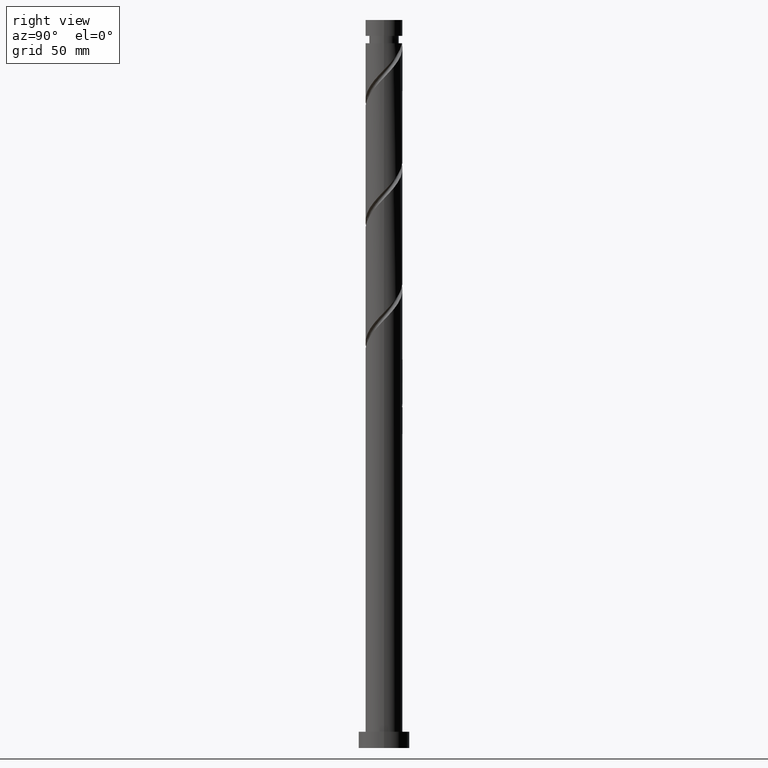
[diagram: clean part render]
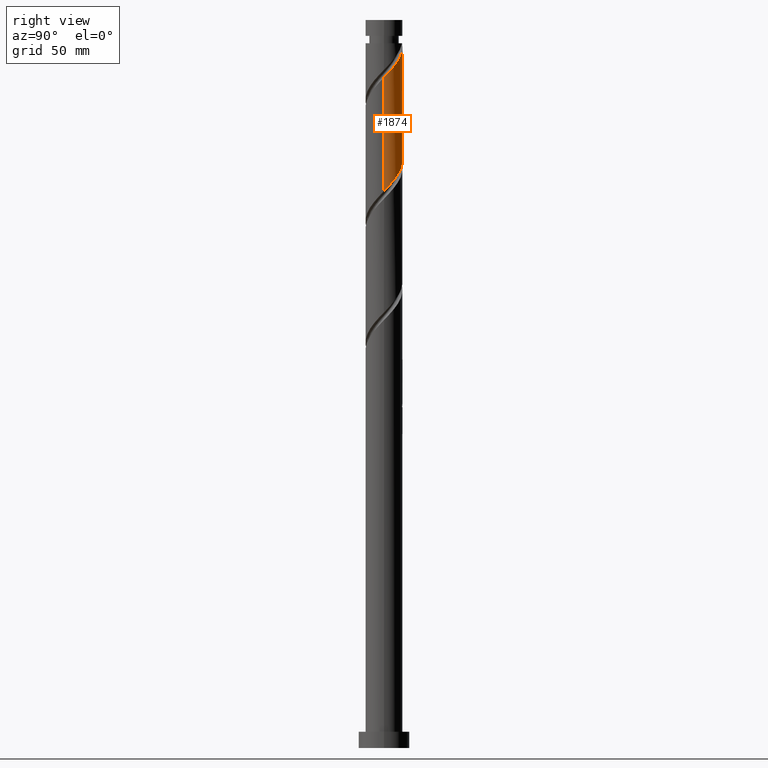
[diagram: same view with one face highlighted and labeled with its STEP entity id]
A machine part, right view. The second image highlights one B-rep face of the part: STEP entity #1874.
In plain terms, the highlighted cylindrical surface (edge-blend (fillet) strip) has radius 8 mm, axis along (-0, -0, -1).
Its self-contained STEP definition (entity closure, byte-faithful):
#26 = DIRECTION ( 'NONE',  ( -1.000000000000000000, 0.000000000000000000, 0.000000000000000000 ) ) ;
#35 = DIRECTION ( 'NONE',  ( -0.000000000000000000, -0.000000000000000000, -1.000000000000000000 ) ) ;
#55 = CIRCLE ( 'NONE', #1708, 7.999999999999976019 ) ;
#78 = CARTESIAN_POINT ( 'NONE',  ( -5.136975590527696589, 6.132820051356686619, 259.9612030128767515 ) ) ;
#92 = CARTESIAN_POINT ( 'NONE',  ( 1.967324187022331472, 7.754330115693885972, 301.2112030128768083 ) ) ;
#111 = CARTESIAN_POINT ( 'NONE',  ( 2.475335748187465601, 7.660626944476033096, 251.5237030128767515 ) ) ;
#154 = CARTESIAN_POINT ( 'NONE',  ( 6.132820051356687507, 5.136975590527694813, 246.8362030128768083 ) ) ;
#168 = VERTEX_POINT ( 'NONE', #748 ) ;
#186 = DIRECTION ( 'NONE',  ( -1.000000000000000000, 0.000000000000000000, 0.000000000000000000 ) ) ;
#211 = EDGE_CURVE ( 'NONE', #834, #854, #1356, .T. ) ;
#231 = ORIENTED_EDGE ( 'NONE', *, *, #708, .T. ) ;
#253 = CARTESIAN_POINT ( 'NONE',  ( -1.967324187022325033, 7.754330115693874426, 256.2112030128767515 ) ) ;
#271 = DIRECTION ( 'NONE',  ( -0.000000000000000000, -0.000000000000000000, -1.000000000000000000 ) ) ;
#298 = CARTESIAN_POINT ( 'NONE',  ( 3.296629761746309395, 7.289185977457873555, 250.5862030128767515 ) ) ;
#314 = CARTESIAN_POINT ( 'NONE',  ( 8.000000000000014211, 0.8040302522073693448, 290.9999570139343632 ) ) ;
#373 = CARTESIAN_POINT ( 'NONE',  ( -6.917745010439714903, 4.117923775305150080, 262.7737030128768083 ) ) ;
#387 = CARTESIAN_POINT ( 'NONE',  ( -8.000000000000000000, -2.537381498659479741E-16, 267.2607200907828542 ) ) ;
#425 = ORIENTED_EDGE ( 'NONE', *, *, #1506, .T. ) ;
#458 = ORIENTED_EDGE ( 'NONE', *, *, #965, .F. ) ;
#490 = CARTESIAN_POINT ( 'NONE',  ( 8.000000000000015987, -3.582185645166298911E-15, 290.1616859349707624 ) ) ;
#540 = CARTESIAN_POINT ( 'NONE',  ( -2.841027358113523249, 7.532665915805472956, 257.1487030128768083 ) ) ;
#542 = CARTESIAN_POINT ( 'NONE',  ( 1.093621015931133478, 7.975994315582287442, 302.1487030128768652 ) ) ;
#573 = CARTESIAN_POINT ( 'NONE',  ( 1.591979899370595142, 7.839999999999999858, 252.4612030128768083 ) ) ;
#581 = CARTESIAN_POINT ( 'NONE',  ( 8.000000000000000000, 9.797174393178825657E-16, 315.0000000000000000 ) ) ;
#599 = VERTEX_POINT ( 'NONE', #387 ) ;
#616 = CARTESIAN_POINT ( 'NONE',  ( 0.000000000000000000, 0.000000000000000000, 315.0000000000000000 ) ) ;
#625 = VECTOR ( 'NONE', #1840, 1000.000000000000000 ) ;
#654 = CARTESIAN_POINT ( 'NONE',  ( 5.136975590527707247, 6.132820051356694613, 297.4612030128767515 ) ) ;
#655 = DIRECTION ( 'NONE',  ( -0.000000000000000000, -0.000000000000000000, -1.000000000000000000 ) ) ;
#681 = CARTESIAN_POINT ( 'NONE',  ( -4.445972725462987718, 6.711618193336553517, 259.0237030128767515 ) ) ;
#708 = EDGE_CURVE ( 'NONE', #834, #1062, #1030, .T. ) ;
#748 = CARTESIAN_POINT ( 'NONE',  ( -7.999999999999976019, 0.000000000000000000, 304.9612030128767515 ) ) ;
#758 = CARTESIAN_POINT ( 'NONE',  ( 7.122142054571012793, 3.643500041788254151, 244.9612030128768083 ) ) ;
#769 = CARTESIAN_POINT ( 'NONE',  ( 7.660626944476047306, 2.475335748187466489, 292.7737030128766946 ) ) ;
#770 = CARTESIAN_POINT ( 'NONE',  ( 0.000000000000000000, 0.000000000000000000, 304.9612030128767515 ) ) ;
#787 = ORIENTED_EDGE ( 'NONE', *, *, #1830, .F. ) ;
#810 = CARTESIAN_POINT ( 'NONE',  ( 4.445972725462998376, 6.711618193336562399, 298.3987030128767515 ) ) ;
#829 = CARTESIAN_POINT ( 'NONE',  ( -6.372861733016058849, 4.835972842340985345, 261.8362030128768083 ) ) ;
#834 = VERTEX_POINT ( 'NONE', #490 ) ;
#854 = VERTEX_POINT ( 'NONE', #1241 ) ;
#869 = CARTESIAN_POINT ( 'NONE',  ( 7.999999999999998224, -1.865721690190793863E-15, 241.0107200907828258 ) ) ;
#886 = EDGE_LOOP ( 'NONE', ( #1763, #231, #787, #458, #425 ) ) ;
#892 = CARTESIAN_POINT ( 'NONE',  ( 4.117923775305150969, 6.917745010439713127, 249.6487030128767799 ) ) ;
#902 = CARTESIAN_POINT ( 'NONE',  ( 6.711618193336553517, 4.445972725462985942, 245.8987030128767515 ) ) ;
#953 = CARTESIAN_POINT ( 'NONE',  ( 5.827978455592415230, 5.554021909376833044, 296.5237030128769220 ) ) ;
#965 = EDGE_CURVE ( 'NONE', #168, #599, #968, .T. ) ;
#968 = LINE ( 'NONE', #1288, #625 ) ;
#975 = CARTESIAN_POINT ( 'NONE',  ( -7.839999999999999858, 1.591979899370594032, 265.5862030128767515 ) ) ;
#984 = CARTESIAN_POINT ( 'NONE',  ( -8.000000000000000000, -2.537381498659479741E-16, 267.2607200907828542 ) ) ;
#995 = CARTESIAN_POINT ( 'NONE',  ( 0.1924984826887064515, 7.997683685553133692, 303.0862030128768083 ) ) ;
#1030 = LINE ( 'NONE', #581, #1681 ) ;
#1062 = VERTEX_POINT ( 'NONE', #1537 ) ;
#1078 = CARTESIAN_POINT ( 'NONE',  ( 6.917745010439728226, 4.117923775305155409, 294.6487030128768652 ) ) ;
#1099 = CARTESIAN_POINT ( 'NONE',  ( -0.7086240505537662049, 8.019373055523983496, 304.0237030128768652 ) ) ;
#1118 = CARTESIAN_POINT ( 'NONE',  ( -7.660626944476033096, 2.475335748187463381, 264.6487030128767515 ) ) ;
#1172 = CARTESIAN_POINT ( 'NONE',  ( -0.1924984826887025380, 7.997683685553119481, 254.3362030128767799 ) ) ;
#1241 = CARTESIAN_POINT ( 'NONE',  ( -1.591979899370642659, 7.840000000000014069, 304.9612030128767515 ) ) ;
#1272 = CARTESIAN_POINT ( 'NONE',  ( -3.643500041788255039, 7.122142054571012793, 258.0862030128767515 ) ) ;
#1273 =( BOUNDED_CURVE ( )  B_SPLINE_CURVE ( 2, ( #984, #1727, #975, #1118, #1712, #373, #829, #1569, #78, #681, #1272, #540, #253, #1327, #1172, #1486, #573, #111, #298, #892, #1759, #1596, #154, #902, #758, #1912, #1338, #1446, #1607, #1350, #869 ),
 .UNSPECIFIED., .F., .T. ) 
 B_SPLINE_CURVE_WITH_KNOTS ( ( 3, 2, 2, 2, 2, 2, 2, 2, 2, 2, 2, 2, 2, 2, 2, 3 ),
 ( 0.4295303401299220281, 0.4375000000000000000, 0.4464285714285714524, 0.4553571428571428492, 0.4642857142857143016, 0.4732142857142856984, 0.4821428571428571508, 0.4910714285714285476, 0.5000000000000000000, 0.5089285714285713969, 0.5178571428571429047, 0.5267857142857143016, 0.5357142857142856984, 0.5446428571428570953, 0.5535714285714286031, 0.5545303401299220836 ),
 .UNSPECIFIED. ) 
 CURVE ( )  GEOMETRIC_REPRESENTATION_ITEM ( )  RATIONAL_B_SPLINE_CURVE ( ( 0.9079949616361917553, 0.9039886423360550260, 0.9090909090909216062, 0.9033747362665968117, 0.9090909090909216062, 0.9033747362665968117, 0.9090909090909216062, 0.9033747362665968117, 0.9090909090909216062, 0.9033747362665968117, 0.9090909090909216062, 0.9033747362665968117, 0.9090909090909216062, 0.9033747362665968117, 0.9090909090909216062, 0.9033747362665968117, 0.9090909090909216062, 0.9033747362665968117, 0.9090909090909216062, 0.9033747362665968117, 0.9090909090909216062, 0.9033747362665968117, 0.9090909090909216062, 0.9033747362665968117, 0.9090909090909216062, 0.9033747362665968117, 0.9090909090909216062, 0.9033747362665968117, 0.9090909090909216062, 0.9084770030214633918, 0.9079949616361917553 ) ) 
 REPRESENTATION_ITEM ( '' )  );
#1288 = CARTESIAN_POINT ( 'NONE',  ( -8.000000000000000000, 0.000000000000000000, 315.0000000000000000 ) ) ;
#1327 = CARTESIAN_POINT ( 'NONE',  ( -1.093621015931128593, 7.975994315582275007, 255.2737030128767799 ) ) ;
#1338 = CARTESIAN_POINT ( 'NONE',  ( 7.754330115693874426, 1.967324187022323256, 243.0862030128767515 ) ) ;
#1350 = CARTESIAN_POINT ( 'NONE',  ( 8.000000000000000000, 0.09626317733112187136, 241.1110827790078588 ) ) ;
#1356 =( BOUNDED_CURVE ( )  B_SPLINE_CURVE ( 2, ( #1490, #314, #1796, #769, #1687, #1078, #1533, #953, #654, #810, #1737, #1415, #92, #542, #995, #1099, #1510 ),
 .UNSPECIFIED., .F., .T. ) 
 B_SPLINE_CURVE_WITH_KNOTS ( ( 3, 2, 2, 2, 2, 2, 2, 2, 3 ),
 ( 0.6795303401299220836, 0.6875000000000000000, 0.6964285714285715079, 0.7053571428571429047, 0.7142857142857145236, 0.7232142857142859205, 0.7321428571428575394, 0.7410714285714290472, 0.7500000000000004441 ),
 .UNSPECIFIED. ) 
 CURVE ( )  GEOMETRIC_REPRESENTATION_ITEM ( )  RATIONAL_B_SPLINE_CURVE ( ( 0.9079949616361984166, 0.9039886423360614653, 0.9090909090909282675, 0.9033747362666031400, 0.9090909090909282675, 0.9033747362666031400, 0.9090909090909282675, 0.9033747362666031400, 0.9090909090909282675, 0.9033747362666031400, 0.9090909090909282675, 0.9033747362666031400, 0.9090909090909282675, 0.9033747362666031400, 0.9090909090909282675, 0.9033747362666029179, 0.9090909090909284895 ) ) 
 REPRESENTATION_ITEM ( '' )  );
#1386 = FACE_OUTER_BOUND ( 'NONE', #886, .T. ) ;
#1415 = CARTESIAN_POINT ( 'NONE',  ( 2.841027358113531243, 7.532665915805483614, 300.2737030128768083 ) ) ;
#1446 = CARTESIAN_POINT ( 'NONE',  ( 7.975994315582275007, 1.093621015931126150, 242.1487030128767515 ) ) ;
#1486 = CARTESIAN_POINT ( 'NONE',  ( 0.7086240505537230172, 8.019373055523969285, 253.3987030128767515 ) ) ;
#1490 = CARTESIAN_POINT ( 'NONE',  ( 8.000000000000015987, -3.582185645166298911E-15, 290.1616859349707624 ) ) ;
#1506 = EDGE_CURVE ( 'NONE', #168, #854, #55, .T. ) ;
#1510 = CARTESIAN_POINT ( 'NONE',  ( -1.591979899370642659, 7.840000000000014069, 304.9612030128767515 ) ) ;
#1533 = CARTESIAN_POINT ( 'NONE',  ( 6.372861733016071284, 4.835972842340993338, 295.5862030128768083 ) ) ;
#1537 = CARTESIAN_POINT ( 'NONE',  ( 7.999999999999998224, -1.865721690190793863E-15, 241.0107200907828258 ) ) ;
#1569 = CARTESIAN_POINT ( 'NONE',  ( -5.827978455592403684, 5.554021909376822386, 260.8987030128766946 ) ) ;
#1581 = AXIS2_PLACEMENT_3D ( 'NONE', #616, #35, #26 ) ;
#1596 = CARTESIAN_POINT ( 'NONE',  ( 5.554021909376825050, 5.827978455592401019, 247.7737030128767231 ) ) ;
#1607 = CARTESIAN_POINT ( 'NONE',  ( 7.997683685553119481, 0.1924984826887013167, 241.2112030128767515 ) ) ;
#1681 = VECTOR ( 'NONE', #271, 1000.000000000000000 ) ;
#1687 = CARTESIAN_POINT ( 'NONE',  ( 7.289185977457886878, 3.296629761746309839, 293.7112030128767515 ) ) ;
#1708 = AXIS2_PLACEMENT_3D ( 'NONE', #770, #655, #186 ) ;
#1712 = CARTESIAN_POINT ( 'NONE',  ( -7.289185977457873555, 3.296629761746308063, 263.7112030128766946 ) ) ;
#1727 = CARTESIAN_POINT ( 'NONE',  ( -8.000000000000000000, 0.8040302522073705660, 266.4224490118191966 ) ) ;
#1737 = CARTESIAN_POINT ( 'NONE',  ( 3.643500041788264809, 7.122142054571020786, 299.3362030128766946 ) ) ;
#1759 = CARTESIAN_POINT ( 'NONE',  ( 4.835972842340986233, 6.372861733016058849, 248.7112030128767799 ) ) ;
#1763 = ORIENTED_EDGE ( 'NONE', *, *, #211, .F. ) ;
#1796 = CARTESIAN_POINT ( 'NONE',  ( 7.840000000000014069, 1.591979899370592921, 291.8362030128768652 ) ) ;
#1820 = CYLINDRICAL_SURFACE ( 'NONE', #1581, 8.000000000000000000 ) ;
#1830 = EDGE_CURVE ( 'NONE', #599, #1062, #1273, .T. ) ;
#1840 = DIRECTION ( 'NONE',  ( -0.000000000000000000, -0.000000000000000000, -1.000000000000000000 ) ) ;
#1874 = ADVANCED_FACE ( 'NONE', ( #1386 ), #1820, .T. ) ;
#1912 = CARTESIAN_POINT ( 'NONE',  ( 7.532665915805472956, 2.841027358113520584, 244.0237030128767515 ) ) ;